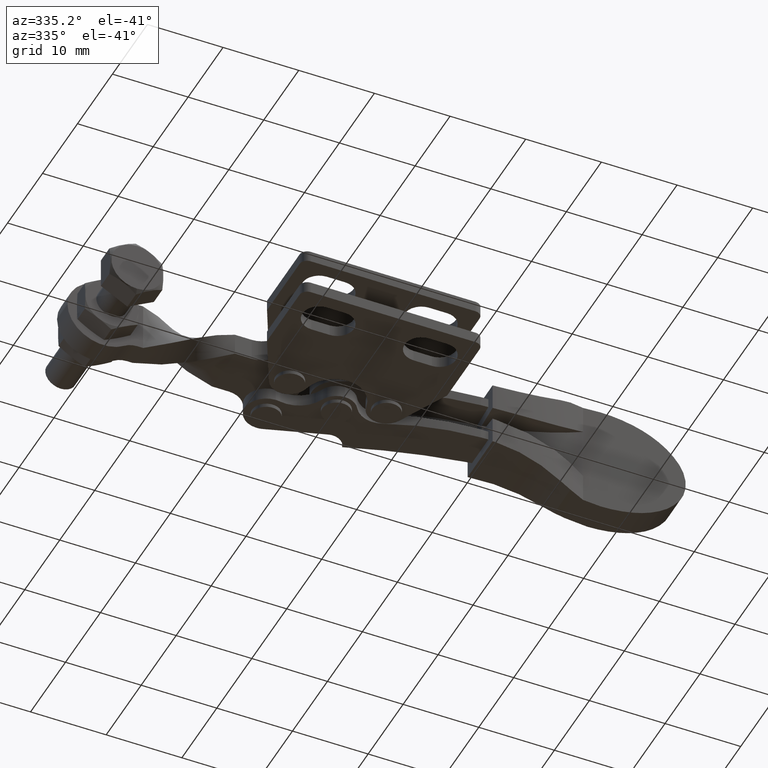
[diagram: clean part render]
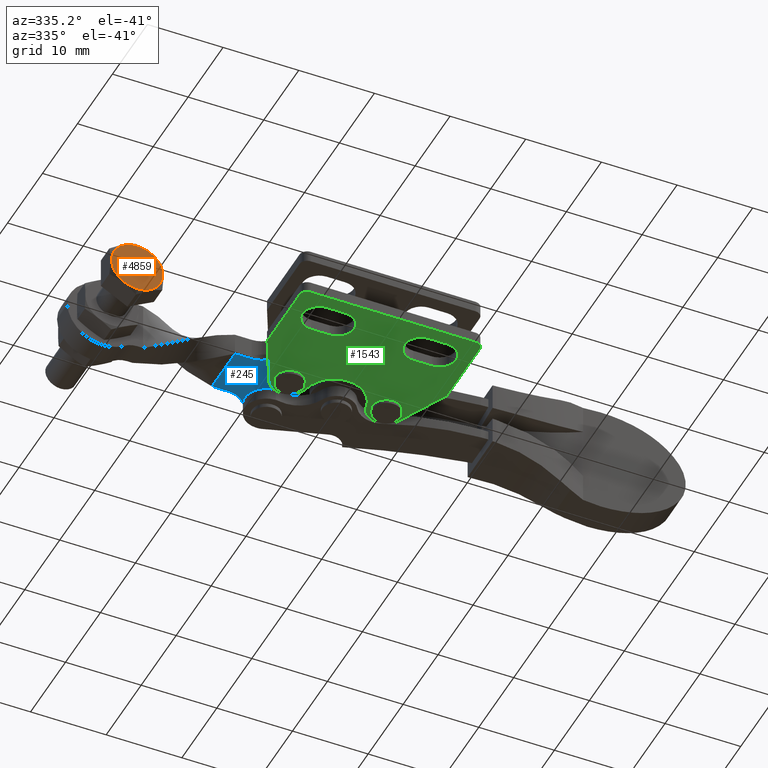
[diagram: same view with three faces highlighted in distinct colors, each labeled with its STEP entity id]
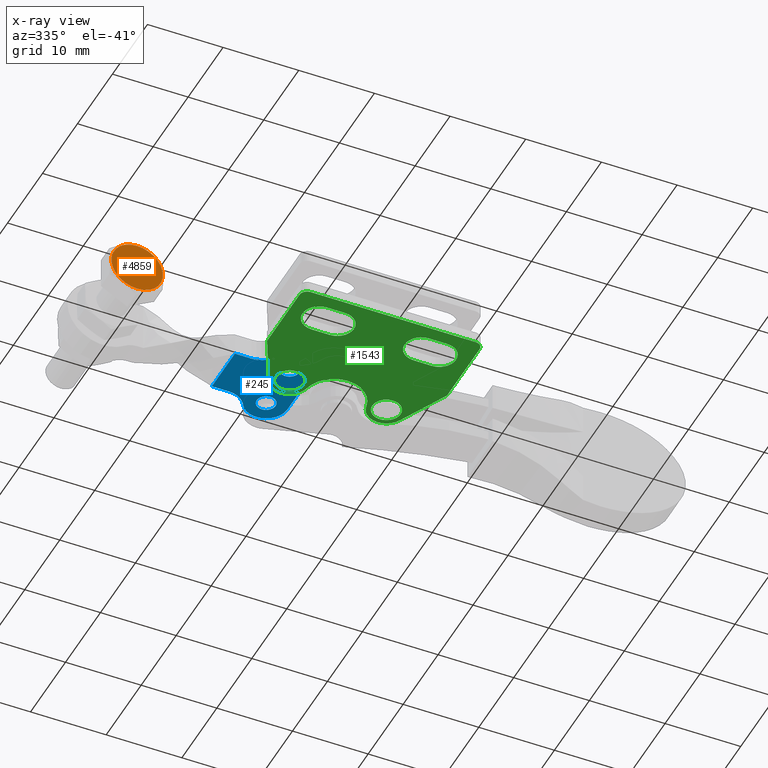
[diagram: x-ray of the same camera — body ghosted, the three highlighted faces saturated]
A machine part, auxiliary view with three faces highlighted in distinct colors.
The next image is the same camera in x-ray (body ghosted, the three faces saturated) — at least one of them is partly hidden behind the body in this view.
Their STEP definitions:

[orange] entity #4859 — the highlighted planar face has unit normal (0, 1, 0).
#105 = DIRECTION ( 'NONE',  ( 0.0000000000000000000, 0.0000000000000000000, -1.000000000000000000 ) ) ;
#788 = CIRCLE ( 'NONE', #1217, 3.399999999999999900 ) ;
#1043 = CARTESIAN_POINT ( 'NONE',  ( -18.25000000000123600, 0.01000000000086175000, -5.541451884327281100 ) ) ;
#1217 = AXIS2_PLACEMENT_3D ( 'NONE', #3407, #8541, #4140 ) ;
#1375 = DIRECTION ( 'NONE',  ( 0.0000000000000000000, -1.000000000000000000, 0.0000000000000000000 ) ) ;
#1430 = AXIS2_PLACEMENT_3D ( 'NONE', #6469, #1375, #105 ) ;
#1794 = DIRECTION ( 'NONE',  ( 0.0000000000000000000, -0.0000000000000000000, 1.000000000000000000 ) ) ;
#2398 = ORIENTED_EDGE ( 'NONE', *, *, #4022, .T. ) ;
#2518 = CARTESIAN_POINT ( 'NONE',  ( -18.25000000000123600, 0.01000000000086175000, 1.900000000000098700 ) ) ;
#3050 = FACE_OUTER_BOUND ( 'NONE', #8390, .T. ) ;
#3364 = VERTEX_POINT ( 'NONE', #2518 ) ;
#3407 = CARTESIAN_POINT ( 'NONE',  ( -18.25000000000123600, 0.01000000000086175000, -1.499999999999901200 ) ) ;
#3720 = CIRCLE ( 'NONE', #1430, 3.399999999999999900 ) ;
#4022 = EDGE_CURVE ( 'NONE', #3364, #8108, #3720, .T. ) ;
#4140 = DIRECTION ( 'NONE',  ( 0.0000000000000000000, 0.0000000000000000000, -1.000000000000000000 ) ) ;
#4859 = ADVANCED_FACE ( 'NONE', ( #3050 ), #7603, .F. ) ;
#4929 = AXIS2_PLACEMENT_3D ( 'NONE', #1043, #6156, #1794 ) ;
#5436 = ORIENTED_EDGE ( 'NONE', *, *, #8156, .T. ) ;
#6156 = DIRECTION ( 'NONE',  ( 0.0000000000000000000, 1.000000000000000000, 0.0000000000000000000 ) ) ;
#6469 = CARTESIAN_POINT ( 'NONE',  ( -18.25000000000123600, 0.01000000000086175000, -1.499999999999901200 ) ) ;
#7603 = PLANE ( 'NONE',  #4929 ) ;
#8108 = VERTEX_POINT ( 'NONE', #9255 ) ;
#8156 = EDGE_CURVE ( 'NONE', #8108, #3364, #788, .T. ) ;
#8390 = EDGE_LOOP ( 'NONE', ( #5436, #2398 ) ) ;
#8541 = DIRECTION ( 'NONE',  ( 0.0000000000000000000, -1.000000000000000000, 0.0000000000000000000 ) ) ;
#9255 = CARTESIAN_POINT ( 'NONE',  ( -18.25000000000123600, 0.01000000000086175000, -4.899999999999900900 ) ) ;

[blue] entity #245 — the highlighted planar face has unit normal (-0, 0, 1).
#27 = CARTESIAN_POINT ( 'NONE',  ( 6.749999999998759200, 14.50000000000084700, -2.999999999999999600 ) ) ;
#245 = ADVANCED_FACE ( 'NONE', ( #741, #8329, #6333 ), #1501, .F. ) ;
#372 = CIRCLE ( 'NONE', #4938, 2.999999999999954300 ) ;
#384 = VECTOR ( 'NONE', #8146, 1000.000000000000000 ) ;
#403 = CARTESIAN_POINT ( 'NONE',  ( 8.299999999998776800, 7.800000000001024800, -3.000000000000000400 ) ) ;
#482 = DIRECTION ( 'NONE',  ( 1.000000000000000000, 0.0000000000000000000, 0.0000000000000000000 ) ) ;
#514 = DIRECTION ( 'NONE',  ( 1.995021649832065000E-021, -0.0000000000000000000, -1.000000000000000000 ) ) ;
#539 = CARTESIAN_POINT ( 'NONE',  ( 5.499999999998759200, 14.50000000000084700, -2.999999999999999600 ) ) ;
#654 = DIRECTION ( 'NONE',  ( 1.995021649832065000E-021, -0.0000000000000000000, -1.000000000000000000 ) ) ;
#688 = DIRECTION ( 'NONE',  ( 1.000000000000000000, 0.0000000000000000000, 0.0000000000000000000 ) ) ;
#741 = FACE_OUTER_BOUND ( 'NONE', #6236, .T. ) ;
#765 = CARTESIAN_POINT ( 'NONE',  ( 5.499999999998759200, 14.50000000000084700, -2.999999999999999600 ) ) ;
#800 = CARTESIAN_POINT ( 'NONE',  ( 5.499999999998762800, 14.50000000000084700, -3.000000000000000900 ) ) ;
#810 = ORIENTED_EDGE ( 'NONE', *, *, #3572, .T. ) ;
#1055 = DIRECTION ( 'NONE',  ( 1.000000000000000000, 8.285109029773513300E-016, 1.995021649829753900E-021 ) ) ;
#1059 = CARTESIAN_POINT ( 'NONE',  ( 0.5062539111393183900, 17.45000000000088000, -3.000000000000000000 ) ) ;
#1186 = CARTESIAN_POINT ( 'NONE',  ( 3.089226026066583600, 15.92413793103536400, -3.000000000000000000 ) ) ;
#1321 = CIRCLE ( 'NONE', #8903, 2.800000000000019400 ) ;
#1362 = CARTESIAN_POINT ( 'NONE',  ( 4.249999999998762800, 7.800000000000904900, -2.999999999999999600 ) ) ;
#1367 = DIRECTION ( 'NONE',  ( 1.000000000000000000, -3.416624000150383700E-014, 9.986929045772952900E-015 ) ) ;
#1453 = VERTEX_POINT ( 'NONE', #1186 ) ;
#1499 = DIRECTION ( 'NONE',  ( 1.000000000000000000, 0.0000000000000000000, 0.0000000000000000000 ) ) ;
#1501 = PLANE ( 'NONE',  #4851 ) ;
#1662 = DIRECTION ( 'NONE',  ( -1.995021649832065000E-021, -0.0000000000000000000, 1.000000000000000000 ) ) ;
#1672 = EDGE_CURVE ( 'NONE', #5523, #1453, #1321, .T. ) ;
#1737 = ORIENTED_EDGE ( 'NONE', *, *, #8824, .F. ) ;
#1790 = EDGE_CURVE ( 'NONE', #2609, #5523, #3180, .T. ) ;
#1822 = DIRECTION ( 'NONE',  ( -6.505213034913126200E-016, 1.000000000000000000, 0.0000000000000000000 ) ) ;
#1857 = DIRECTION ( 'NONE',  ( 1.995021649832065000E-021, 0.0000000000000000000, -1.000000000000000000 ) ) ;
#1861 = EDGE_CURVE ( 'NONE', #4027, #2609, #2012, .T. ) ;
#2012 = CIRCLE ( 'NONE', #3115, 2.800000000000019400 ) ;
#2018 = CARTESIAN_POINT ( 'NONE',  ( 8.299999999998634700, 11.15000000000089000, -3.000000000000005300 ) ) ;
#2096 = CARTESIAN_POINT ( 'NONE',  ( 0.5062539111393809000, 7.850000000000769700, -3.000000000000000900 ) ) ;
#2256 = VERTEX_POINT ( 'NONE', #27 ) ;
#2265 = VERTEX_POINT ( 'NONE', #5142 ) ;
#2361 = EDGE_CURVE ( 'NONE', #4876, #4585, #5644, .T. ) ;
#2609 = VERTEX_POINT ( 'NONE', #403 ) ;
#2738 = CIRCLE ( 'NONE', #8814, 2.999999999999968000 ) ;
#2859 = CARTESIAN_POINT ( 'NONE',  ( -0.5968730444309220400, 7.850000000000797200, -2.999999999999999100 ) ) ;
#2875 = ORIENTED_EDGE ( 'NONE', *, *, #6908, .F. ) ;
#2882 = AXIS2_PLACEMENT_3D ( 'NONE', #4905, #7950, #688 ) ;
#3033 = CIRCLE ( 'NONE', #5545, 1.250000000000000200 ) ;
#3093 = VECTOR ( 'NONE', #1367, 1000.000000000000000 ) ;
#3115 = AXIS2_PLACEMENT_3D ( 'NONE', #7680, #1662, #7511 ) ;
#3180 = LINE ( 'NONE', #2018, #5329 ) ;
#3232 = CARTESIAN_POINT ( 'NONE',  ( 4.249999999998759200, 14.50000000000084700, -2.999999999999999600 ) ) ;
#3363 = AXIS2_PLACEMENT_3D ( 'NONE', #765, #5855, #1499 ) ;
#3412 = CARTESIAN_POINT ( 'NONE',  ( 0.5062539111392698700, 14.45000000000087700, -3.000000000000000400 ) ) ;
#3414 = EDGE_CURVE ( 'NONE', #3998, #2256, #3033, .T. ) ;
#3547 = LINE ( 'NONE', #2859, #3093 ) ;
#3572 = EDGE_CURVE ( 'NONE', #5767, #2265, #7695, .T. ) ;
#3657 = DIRECTION ( 'NONE',  ( -7.678352877981826000E-014, 1.000000000000000000, -1.149080830487037000E-014 ) ) ;
#3713 = DIRECTION ( 'NONE',  ( -1.995021649829753900E-021, 1.914701819192296700E-048, 1.000000000000000000 ) ) ;
#3962 = DIRECTION ( 'NONE',  ( -1.995021649832065000E-021, -0.0000000000000000000, 1.000000000000000000 ) ) ;
#3998 = VERTEX_POINT ( 'NONE', #3232 ) ;
#4008 = ORIENTED_EDGE ( 'NONE', *, *, #8366, .F. ) ;
#4027 = VERTEX_POINT ( 'NONE', #7255 ) ;
#4061 = CARTESIAN_POINT ( 'NONE',  ( 8.299999999998572500, 14.50000000000095400, -3.000000000000000400 ) ) ;
#4128 = DIRECTION ( 'NONE',  ( -1.000000000000000000, -2.149896335403862400E-015, -1.944710899607790800E-015 ) ) ;
#4243 = EDGE_CURVE ( 'NONE', #2256, #3998, #6907, .T. ) ;
#4585 = VERTEX_POINT ( 'NONE', #1362 ) ;
#4851 = AXIS2_PLACEMENT_3D ( 'NONE', #6128, #3713, #1055 ) ;
#4876 = VERTEX_POINT ( 'NONE', #7639 ) ;
#4905 = CARTESIAN_POINT ( 'NONE',  ( 5.499999999998762800, 7.800000000000904900, -2.999999999999999600 ) ) ;
#4938 = AXIS2_PLACEMENT_3D ( 'NONE', #1059, #6175, #1822 ) ;
#5028 = CARTESIAN_POINT ( 'NONE',  ( 5.499999999998762800, 7.800000000000904900, -2.999999999999999600 ) ) ;
#5099 = ORIENTED_EDGE ( 'NONE', *, *, #8066, .F. ) ;
#5142 = CARTESIAN_POINT ( 'NONE',  ( -1.700000000001311600, 14.45000000000088900, -2.999999999999983100 ) ) ;
#5329 = VECTOR ( 'NONE', #3657, 1000.000000000000000 ) ;
#5523 = VERTEX_POINT ( 'NONE', #4061 ) ;
#5545 = AXIS2_PLACEMENT_3D ( 'NONE', #539, #514, #482 ) ;
#5644 = CIRCLE ( 'NONE', #2882, 1.250000000000000200 ) ;
#5678 = VECTOR ( 'NONE', #4128, 1000.000000000000000 ) ;
#5711 = EDGE_CURVE ( 'NONE', #4585, #4876, #7934, .T. ) ;
#5754 = DIRECTION ( 'NONE',  ( 1.000000000000000000, 0.0000000000000000000, 0.0000000000000000000 ) ) ;
#5767 = VERTEX_POINT ( 'NONE', #8261 ) ;
#5855 = DIRECTION ( 'NONE',  ( 1.995021649832065000E-021, -0.0000000000000000000, -1.000000000000000000 ) ) ;
#6030 = VERTEX_POINT ( 'NONE', #3412 ) ;
#6128 = CARTESIAN_POINT ( 'NONE',  ( 0.5062539111393253900, 4.850000000000808800, -2.999999999999999600 ) ) ;
#6165 = ORIENTED_EDGE ( 'NONE', *, *, #2361, .F. ) ;
#6175 = DIRECTION ( 'NONE',  ( 1.995021649832065000E-021, 0.0000000000000000000, -1.000000000000000000 ) ) ;
#6216 = CARTESIAN_POINT ( 'NONE',  ( 0.5062539111393253900, 4.850000000000808800, -3.000000000000000400 ) ) ;
#6236 = EDGE_LOOP ( 'NONE', ( #4008, #810, #1737, #2875, #9311, #8726, #6775, #5099 ) ) ;
#6333 = FACE_BOUND ( 'NONE', #8928, .T. ) ;
#6775 = ORIENTED_EDGE ( 'NONE', *, *, #1861, .F. ) ;
#6907 = CIRCLE ( 'NONE', #3363, 1.250000000000000200 ) ;
#6908 = EDGE_CURVE ( 'NONE', #1453, #6030, #372, .T. ) ;
#6920 = EDGE_LOOP ( 'NONE', ( #6165, #9293 ) ) ;
#6946 = DIRECTION ( 'NONE',  ( -6.505213034913095600E-016, 1.000000000000000000, 0.0000000000000000000 ) ) ;
#7018 = ORIENTED_EDGE ( 'NONE', *, *, #4243, .F. ) ;
#7153 = DIRECTION ( 'NONE',  ( -6.195440985631410900E-016, 1.000000000000000000, 0.0000000000000000000 ) ) ;
#7255 = CARTESIAN_POINT ( 'NONE',  ( 3.089226026066607600, 6.375862068966371900, -3.000000000000000900 ) ) ;
#7408 = LINE ( 'NONE', #9280, #5678 ) ;
#7511 = DIRECTION ( 'NONE',  ( 3.097720492815705500E-016, 1.000000000000000000, 0.0000000000000000000 ) ) ;
#7639 = CARTESIAN_POINT ( 'NONE',  ( 6.749999999998762800, 7.800000000000904900, -2.999999999999999600 ) ) ;
#7654 = VERTEX_POINT ( 'NONE', #2096 ) ;
#7680 = CARTESIAN_POINT ( 'NONE',  ( 5.499999999998766300, 7.800000000000904900, -3.000000000000000900 ) ) ;
#7695 = LINE ( 'NONE', #8704, #384 ) ;
#7876 = ORIENTED_EDGE ( 'NONE', *, *, #3414, .F. ) ;
#7934 = CIRCLE ( 'NONE', #9380, 1.250000000000000200 ) ;
#7950 = DIRECTION ( 'NONE',  ( 1.995021649832065000E-021, -0.0000000000000000000, -1.000000000000000000 ) ) ;
#8066 = EDGE_CURVE ( 'NONE', #7654, #4027, #2738, .T. ) ;
#8146 = DIRECTION ( 'NONE',  ( -4.481942456846721100E-014, 1.000000000000000000, 1.082467449009527600E-014 ) ) ;
#8261 = CARTESIAN_POINT ( 'NONE',  ( -1.700000000001332400, 7.850000000000851400, -3.000000000000015500 ) ) ;
#8329 = FACE_BOUND ( 'NONE', #6920, .T. ) ;
#8366 = EDGE_CURVE ( 'NONE', #5767, #7654, #3547, .T. ) ;
#8704 = CARTESIAN_POINT ( 'NONE',  ( -1.700000000001256100, 11.15000000000086000, -2.999999999999995600 ) ) ;
#8726 = ORIENTED_EDGE ( 'NONE', *, *, #1790, .F. ) ;
#8814 = AXIS2_PLACEMENT_3D ( 'NONE', #6216, #1857, #6946 ) ;
#8824 = EDGE_CURVE ( 'NONE', #6030, #2265, #7408, .T. ) ;
#8903 = AXIS2_PLACEMENT_3D ( 'NONE', #800, #3962, #7153 ) ;
#8928 = EDGE_LOOP ( 'NONE', ( #7018, #7876 ) ) ;
#9280 = CARTESIAN_POINT ( 'NONE',  ( -0.5968730444309844300, 14.45000000000089300, -3.000000000000003600 ) ) ;
#9293 = ORIENTED_EDGE ( 'NONE', *, *, #5711, .F. ) ;
#9311 = ORIENTED_EDGE ( 'NONE', *, *, #1672, .F. ) ;
#9380 = AXIS2_PLACEMENT_3D ( 'NONE', #5028, #654, #5754 ) ;

[green] entity #1543 — the highlighted planar face has unit normal (0, 0, 1).
#3 = DIRECTION ( 'NONE',  ( 1.000000000000000000, 0.0000000000000000000, 0.0000000000000000000 ) ) ;
#21 = LINE ( 'NONE', #4573, #8892 ) ;
#79 = FACE_BOUND ( 'NONE', #129, .T. ) ;
#86 = AXIS2_PLACEMENT_3D ( 'NONE', #5265, #5599, #4816 ) ;
#95 = DIRECTION ( 'NONE',  ( 1.000000000000000000, 0.0000000000000000000, 0.0000000000000000000 ) ) ;
#112 = VERTEX_POINT ( 'NONE', #4150 ) ;
#129 = EDGE_LOOP ( 'NONE', ( #4120, #6189, #4794, #4086, #5095 ) ) ;
#162 = CARTESIAN_POINT ( 'NONE',  ( 11.89999999999980000, 16.89000000000005700, -3.199999999999851900 ) ) ;
#216 = LINE ( 'NONE', #6791, #3888 ) ;
#257 = DIRECTION ( 'NONE',  ( 0.0000000000000000000, 0.0000000000000000000, 1.000000000000000000 ) ) ;
#327 = CARTESIAN_POINT ( 'NONE',  ( 7.962000027045903900, 16.18846153846159900, -3.199999999999851900 ) ) ;
#390 = DIRECTION ( 'NONE',  ( 1.000000000000000000, 0.0000000000000000000, 0.0000000000000000000 ) ) ;
#426 = CARTESIAN_POINT ( 'NONE',  ( 1.000000000000000000, 0.0000000000000000000, -3.199999999999851900 ) ) ;
#629 = VERTEX_POINT ( 'NONE', #2244 ) ;
#635 = EDGE_CURVE ( 'NONE', #793, #6489, #1657, .T. ) ;
#662 = EDGE_CURVE ( 'NONE', #7148, #9131, #6142, .T. ) ;
#689 = DIRECTION ( 'NONE',  ( 0.0000000000000000000, 0.0000000000000000000, 1.000000000000000000 ) ) ;
#719 = AXIS2_PLACEMENT_3D ( 'NONE', #4642, #257, #5370 ) ;
#793 = VERTEX_POINT ( 'NONE', #8273 ) ;
#816 = DIRECTION ( 'NONE',  ( 1.000000000000000000, 0.0000000000000000000, -0.0000000000000000000 ) ) ;
#897 = DIRECTION ( 'NONE',  ( 1.000000000000000000, 0.0000000000000000000, 0.0000000000000000000 ) ) ;
#1075 = DIRECTION ( 'NONE',  ( 0.0000000000000000000, 0.0000000000000000000, 1.000000000000000000 ) ) ;
#1368 = CARTESIAN_POINT ( 'NONE',  ( 2.999999999999891600, 0.0000000000000000000, -3.199999999999851900 ) ) ;
#1401 = DIRECTION ( 'NONE',  ( 0.0000000000000000000, 0.0000000000000000000, 1.000000000000000000 ) ) ;
#1454 = CARTESIAN_POINT ( 'NONE',  ( 3.950000000000000200, 6.150000000000001200, -3.199999999999851900 ) ) ;
#1480 = ORIENTED_EDGE ( 'NONE', *, *, #1814, .T. ) ;
#1538 = ORIENTED_EDGE ( 'NONE', *, *, #8452, .F. ) ;
#1543 = ADVANCED_FACE ( 'NONE', ( #79, #2019, #7857, #7617, #5663 ), #2118, .F. ) ;
#1657 = CIRCLE ( 'NONE', #86, 1.875000000000000000 ) ;
#1771 = DIRECTION ( 'NONE',  ( 1.000000000000000000, 0.0000000000000000000, 0.0000000000000000000 ) ) ;
#1814 = EDGE_CURVE ( 'NONE', #7330, #7074, #5096, .T. ) ;
#1823 = VECTOR ( 'NONE', #4586, 1000.000000000000000 ) ;
#1935 = DIRECTION ( 'NONE',  ( -0.0000000000000000000, -0.0000000000000000000, -1.000000000000000000 ) ) ;
#1942 = ORIENTED_EDGE ( 'NONE', *, *, #6423, .F. ) ;
#1995 = ORIENTED_EDGE ( 'NONE', *, *, #6377, .F. ) ;
#2019 = FACE_BOUND ( 'NONE', #2306, .T. ) ;
#2031 = CARTESIAN_POINT ( 'NONE',  ( 3.262051122148043700, 16.86275654908130100, -3.199999999999851900 ) ) ;
#2047 = CIRCLE ( 'NONE', #4665, 1.000000000000000000 ) ;
#2118 = PLANE ( 'NONE',  #8400 ) ;
#2155 = EDGE_CURVE ( 'NONE', #629, #9114, #4755, .T. ) ;
#2244 = CARTESIAN_POINT ( 'NONE',  ( 22.05000000000000100, 3.950000000000000200, -3.199999999999851900 ) ) ;
#2305 = ORIENTED_EDGE ( 'NONE', *, *, #7975, .F. ) ;
#2306 = EDGE_LOOP ( 'NONE', ( #6276, #1480, #7039, #5490, #7748 ) ) ;
#2358 = ORIENTED_EDGE ( 'NONE', *, *, #7931, .F. ) ;
#2412 = VERTEX_POINT ( 'NONE', #3209 ) ;
#2415 = AXIS2_PLACEMENT_3D ( 'NONE', #2457, #7548, #3191 ) ;
#2457 = CARTESIAN_POINT ( 'NONE',  ( 5.500750043949922000, 15.75000000000009800, -3.199999999999851900 ) ) ;
#2652 = CARTESIAN_POINT ( 'NONE',  ( 17.44999999999999900, 1.749999999999999800, -3.199999999999851900 ) ) ;
#2687 = LINE ( 'NONE', #1368, #6325 ) ;
#2728 = CIRCLE ( 'NONE', #4725, 2.499999999999998700 ) ;
#2773 = CIRCLE ( 'NONE', #719, 2.200000000000000600 ) ;
#2783 = CARTESIAN_POINT ( 'NONE',  ( 1.000000000000000000, 1.000000000000000000, -3.199999999999851900 ) ) ;
#2788 = EDGE_CURVE ( 'NONE', #6489, #793, #6884, .T. ) ;
#2807 = ORIENTED_EDGE ( 'NONE', *, *, #4886, .T. ) ;
#2816 = EDGE_CURVE ( 'NONE', #9131, #8804, #3040, .T. ) ;
#2860 = DIRECTION ( 'NONE',  ( 1.000000000000000000, 0.0000000000000000000, 0.0000000000000000000 ) ) ;
#2957 = ORIENTED_EDGE ( 'NONE', *, *, #9433, .F. ) ;
#3017 = DIRECTION ( 'NONE',  ( 0.0000000000000000000, 0.0000000000000000000, 1.000000000000000000 ) ) ;
#3023 = CARTESIAN_POINT ( 'NONE',  ( 16.46520534518861100, 15.36024961145445300, -3.199999999999848700 ) ) ;
#3040 = CIRCLE ( 'NONE', #6881, 2.200000000000000600 ) ;
#3137 = CARTESIAN_POINT ( 'NONE',  ( 2.999999999999891600, 1.749999999999999800, -3.199999999999851900 ) ) ;
#3191 = DIRECTION ( 'NONE',  ( 1.000000000000000000, 0.0000000000000000000, 0.0000000000000000000 ) ) ;
#3209 = CARTESIAN_POINT ( 'NONE',  ( 6.349999999999999600, 1.749999999999999800, -3.199999999999851900 ) ) ;
#3215 = CARTESIAN_POINT ( 'NONE',  ( 20.13329456691074500, 16.13975038854574300, -3.199999999999848700 ) ) ;
#3235 = DIRECTION ( 'NONE',  ( -1.000000000000000000, -0.0000000000000000000, 0.0000000000000000000 ) ) ;
#3340 = CARTESIAN_POINT ( 'NONE',  ( 19.84999999999999800, 1.749999999999999800, -3.199999999999851900 ) ) ;
#3408 = CARTESIAN_POINT ( 'NONE',  ( 15.83799997295369400, 16.18846153846159900, -3.199999999999851900 ) ) ;
#3430 = VERTEX_POINT ( 'NONE', #426 ) ;
#3529 = DIRECTION ( 'NONE',  ( 1.000000000000000000, 0.0000000000000000000, 0.0000000000000000000 ) ) ;
#3543 = VERTEX_POINT ( 'NONE', #327 ) ;
#3689 = EDGE_LOOP ( 'NONE', ( #4255, #8479 ) ) ;
#3727 = CARTESIAN_POINT ( 'NONE',  ( 17.44999999999999900, 6.150000000000001200, -3.199999999999851900 ) ) ;
#3770 = DIRECTION ( 'NONE',  ( 0.0000000000000000000, 0.0000000000000000000, 1.000000000000000000 ) ) ;
#3876 = VERTEX_POINT ( 'NONE', #2031 ) ;
#3888 = VECTOR ( 'NONE', #6088, 1000.000000000000000 ) ;
#3926 = VECTOR ( 'NONE', #8077, 1000.000000000000100 ) ;
#3958 = CARTESIAN_POINT ( 'NONE',  ( 18.29924995604967800, 15.75000000000009800, -3.199999999999848700 ) ) ;
#4020 = DIRECTION ( 'NONE',  ( -0.4451026196324694400, 0.8954795687207571800, -0.0000000000000000000 ) ) ;
#4034 = EDGE_CURVE ( 'NONE', #8804, #2412, #9408, .T. ) ;
#4086 = ORIENTED_EDGE ( 'NONE', *, *, #4867, .T. ) ;
#4087 = EDGE_CURVE ( 'NONE', #9114, #7330, #8445, .T. ) ;
#4120 = ORIENTED_EDGE ( 'NONE', *, *, #662, .T. ) ;
#4150 = CARTESIAN_POINT ( 'NONE',  ( 8.550000000000000700, 3.950000000000000200, -3.199999999999851900 ) ) ;
#4228 = VECTOR ( 'NONE', #3235, 1000.000000000000000 ) ;
#4255 = ORIENTED_EDGE ( 'NONE', *, *, #2788, .F. ) ;
#4385 = CARTESIAN_POINT ( 'NONE',  ( 23.79999999999959900, 1.000000000000000000, -3.199999999999851900 ) ) ;
#4392 = LINE ( 'NONE', #6568, #3926 ) ;
#4402 = DIRECTION ( 'NONE',  ( 0.0000000000000000000, 0.0000000000000000000, 1.000000000000000000 ) ) ;
#4421 = AXIS2_PLACEMENT_3D ( 'NONE', #3958, #9135, #4686 ) ;
#4434 = VECTOR ( 'NONE', #5674, 1000.000000000000000 ) ;
#4458 = EDGE_LOOP ( 'NONE', ( #5078, #4519, #1942, #4989, #2358, #1995, #2957, #5811, #2305, #2807 ) ) ;
#4464 = AXIS2_PLACEMENT_3D ( 'NONE', #5465, #1075, #6184 ) ;
#4481 = DIRECTION ( 'NONE',  ( -0.0000000000000000000, -0.0000000000000000000, -1.000000000000000000 ) ) ;
#4489 = AXIS2_PLACEMENT_3D ( 'NONE', #8904, #4481, #95 ) ;
#4519 = ORIENTED_EDGE ( 'NONE', *, *, #8263, .T. ) ;
#4523 = VERTEX_POINT ( 'NONE', #3340 ) ;
#4573 = CARTESIAN_POINT ( 'NONE',  ( 0.0000000000000000000, 3.000000000000113700, -3.199999999999851900 ) ) ;
#4586 = DIRECTION ( 'NONE',  ( 1.000000000000000000, 0.0000000000000000000, -0.0000000000000000000 ) ) ;
#4600 = CARTESIAN_POINT ( 'NONE',  ( 17.44999999999999900, 3.950000000000000200, -3.199999999999851900 ) ) ;
#4625 = DIRECTION ( 'NONE',  ( 0.0000000000000000000, 0.0000000000000000000, 1.000000000000000000 ) ) ;
#4642 = CARTESIAN_POINT ( 'NONE',  ( 6.349999999999999600, 3.950000000000000200, -3.199999999999851900 ) ) ;
#4662 = DIRECTION ( 'NONE',  ( 1.000000000000000000, 0.0000000000000000000, 0.0000000000000000000 ) ) ;
#4665 = AXIS2_PLACEMENT_3D ( 'NONE', #2783, #7902, #3529 ) ;
#4686 = DIRECTION ( 'NONE',  ( 1.000000000000000000, 0.0000000000000000000, 0.0000000000000000000 ) ) ;
#4725 = AXIS2_PLACEMENT_3D ( 'NONE', #8821, #4402, #3 ) ;
#4755 = CIRCLE ( 'NONE', #8011, 2.200000000000000600 ) ;
#4765 = DIRECTION ( 'NONE',  ( -0.0000000000000000000, -0.0000000000000000000, -1.000000000000000000 ) ) ;
#4794 = ORIENTED_EDGE ( 'NONE', *, *, #4034, .T. ) ;
#4809 = CARTESIAN_POINT ( 'NONE',  ( 23.79999999999959900, 10.30000000000008600, -3.199999999999851900 ) ) ;
#4816 = DIRECTION ( 'NONE',  ( 1.000000000000000000, 1.850371707708594400E-015, 0.0000000000000000000 ) ) ;
#4867 = EDGE_CURVE ( 'NONE', #2412, #112, #7954, .T. ) ;
#4886 = EDGE_CURVE ( 'NONE', #7280, #7785, #7717, .T. ) ;
#4933 = AXIS2_PLACEMENT_3D ( 'NONE', #7229, #1935, #7141 ) ;
#4989 = ORIENTED_EDGE ( 'NONE', *, *, #6264, .F. ) ;
#5013 = VERTEX_POINT ( 'NONE', #3408 ) ;
#5078 = ORIENTED_EDGE ( 'NONE', *, *, #5102, .F. ) ;
#5095 = ORIENTED_EDGE ( 'NONE', *, *, #6475, .T. ) ;
#5096 = CIRCLE ( 'NONE', #8209, 2.200000000000000600 ) ;
#5102 = EDGE_CURVE ( 'NONE', #3430, #7785, #2687, .T. ) ;
#5150 = CIRCLE ( 'NONE', #4421, 1.874999999999998200 ) ;
#5240 = VERTEX_POINT ( 'NONE', #3023 ) ;
#5265 = CARTESIAN_POINT ( 'NONE',  ( 5.500750043949922800, 15.75000000000009800, -3.199999999999848700 ) ) ;
#5276 = DIRECTION ( 'NONE',  ( -0.0000000000000000000, -0.0000000000000000000, -1.000000000000000000 ) ) ;
#5301 = ORIENTED_EDGE ( 'NONE', *, *, #7371, .F. ) ;
#5317 = CARTESIAN_POINT ( 'NONE',  ( 19.84999999999999800, 6.150000000000001200, -3.199999999999851900 ) ) ;
#5370 = DIRECTION ( 'NONE',  ( 1.000000000000000000, 0.0000000000000000000, 0.0000000000000000000 ) ) ;
#5465 = CARTESIAN_POINT ( 'NONE',  ( 6.349999999999999600, 3.950000000000000200, -3.199999999999851900 ) ) ;
#5490 = ORIENTED_EDGE ( 'NONE', *, *, #8465, .T. ) ;
#5568 = CIRCLE ( 'NONE', #4489, 1.874999999999998200 ) ;
#5599 = DIRECTION ( 'NONE',  ( -0.0000000000000000000, -0.0000000000000000000, -1.000000000000000000 ) ) ;
#5663 = FACE_OUTER_BOUND ( 'NONE', #4458, .T. ) ;
#5674 = DIRECTION ( 'NONE',  ( -1.000000000000000000, -0.0000000000000000000, 0.0000000000000000000 ) ) ;
#5737 = CARTESIAN_POINT ( 'NONE',  ( 2.999999999999891600, 1.749999999999999800, -3.199999999999851900 ) ) ;
#5811 = ORIENTED_EDGE ( 'NONE', *, *, #5930, .F. ) ;
#5890 = AXIS2_PLACEMENT_3D ( 'NONE', #9224, #4765, #390 ) ;
#5930 = EDGE_CURVE ( 'NONE', #5993, #8474, #8415, .T. ) ;
#5993 = VERTEX_POINT ( 'NONE', #4809 ) ;
#6058 = DIRECTION ( 'NONE',  ( 1.000000000000000000, 0.0000000000000000000, -0.0000000000000000000 ) ) ;
#6059 = CARTESIAN_POINT ( 'NONE',  ( 7.373472918111313700, 15.65762015050517800, -3.199999999999848700 ) ) ;
#6088 = DIRECTION ( 'NONE',  ( 0.0000000000000000000, 1.000000000000000000, 0.0000000000000000000 ) ) ;
#6142 = LINE ( 'NONE', #9099, #4228 ) ;
#6149 = LINE ( 'NONE', #3137, #1823 ) ;
#6184 = DIRECTION ( 'NONE',  ( 1.000000000000000000, 0.0000000000000000000, 0.0000000000000000000 ) ) ;
#6189 = ORIENTED_EDGE ( 'NONE', *, *, #2816, .T. ) ;
#6264 = EDGE_CURVE ( 'NONE', #3876, #9420, #4392, .T. ) ;
#6276 = ORIENTED_EDGE ( 'NONE', *, *, #4087, .T. ) ;
#6325 = VECTOR ( 'NONE', #2860, 1000.000000000000000 ) ;
#6377 = EDGE_CURVE ( 'NONE', #5013, #3543, #7094, .T. ) ;
#6408 = AXIS2_PLACEMENT_3D ( 'NONE', #8175, #3770, #8941 ) ;
#6409 = VECTOR ( 'NONE', #4020, 1000.000000000000100 ) ;
#6423 = EDGE_CURVE ( 'NONE', #9420, #6934, #21, .T. ) ;
#6442 = CARTESIAN_POINT ( 'NONE',  ( 3.950000000000000200, 3.950000000000000200, -3.199999999999851900 ) ) ;
#6475 = EDGE_CURVE ( 'NONE', #112, #7148, #2773, .T. ) ;
#6489 = VERTEX_POINT ( 'NONE', #6059 ) ;
#6568 = CARTESIAN_POINT ( 'NONE',  ( 3.262051122148040200, 16.86275654908130100, -3.199999999999851900 ) ) ;
#6610 = CARTESIAN_POINT ( 'NONE',  ( 22.79999999999959900, 0.0000000000000000000, -3.199999999999851900 ) ) ;
#6791 = CARTESIAN_POINT ( 'NONE',  ( 23.79999999999959900, 3.000000000000113700, -3.199999999999851900 ) ) ;
#6850 = DIRECTION ( 'NONE',  ( 1.000000000000000000, 0.0000000000000000000, 0.0000000000000000000 ) ) ;
#6881 = AXIS2_PLACEMENT_3D ( 'NONE', #6442, #3017, #4662 ) ;
#6884 = CIRCLE ( 'NONE', #4933, 1.875000000000000000 ) ;
#6934 = VERTEX_POINT ( 'NONE', #9172 ) ;
#7039 = ORIENTED_EDGE ( 'NONE', *, *, #9110, .T. ) ;
#7074 = VERTEX_POINT ( 'NONE', #2652 ) ;
#7092 = CARTESIAN_POINT ( 'NONE',  ( 6.349999999999999600, 6.150000000000001200, -3.199999999999851900 ) ) ;
#7094 = CIRCLE ( 'NONE', #9330, 4.000000000000329500 ) ;
#7141 = DIRECTION ( 'NONE',  ( 1.000000000000000000, 0.0000000000000000000, 0.0000000000000000000 ) ) ;
#7148 = VERTEX_POINT ( 'NONE', #7092 ) ;
#7229 = CARTESIAN_POINT ( 'NONE',  ( 5.500750043949922800, 15.75000000000009800, -3.199999999999848700 ) ) ;
#7280 = VERTEX_POINT ( 'NONE', #4385 ) ;
#7302 = CIRCLE ( 'NONE', #6408, 2.200000000000000600 ) ;
#7330 = VERTEX_POINT ( 'NONE', #3727 ) ;
#7371 = EDGE_CURVE ( 'NONE', #8624, #5240, #5150, .T. ) ;
#7374 = VECTOR ( 'NONE', #6058, 1000.000000000000000 ) ;
#7409 = CARTESIAN_POINT ( 'NONE',  ( 20.53794887785156600, 16.86275654908127600, -3.199999999999851900 ) ) ;
#7548 = DIRECTION ( 'NONE',  ( 0.0000000000000000000, 0.0000000000000000000, 1.000000000000000000 ) ) ;
#7617 = FACE_BOUND ( 'NONE', #9178, .T. ) ;
#7717 = CIRCLE ( 'NONE', #5890, 1.000000000000000900 ) ;
#7748 = ORIENTED_EDGE ( 'NONE', *, *, #2155, .T. ) ;
#7785 = VERTEX_POINT ( 'NONE', #6610 ) ;
#7836 = CARTESIAN_POINT ( 'NONE',  ( 19.84999999999999800, 3.950000000000000200, -3.199999999999851900 ) ) ;
#7857 = FACE_BOUND ( 'NONE', #3689, .T. ) ;
#7867 = CARTESIAN_POINT ( 'NONE',  ( 2.999999999999891600, 6.150000000000001200, -3.199999999999851900 ) ) ;
#7902 = DIRECTION ( 'NONE',  ( -0.0000000000000000000, -0.0000000000000000000, -1.000000000000000000 ) ) ;
#7931 = EDGE_CURVE ( 'NONE', #3543, #3876, #8012, .T. ) ;
#7954 = CIRCLE ( 'NONE', #4464, 2.200000000000000600 ) ;
#7975 = EDGE_CURVE ( 'NONE', #7280, #5993, #216, .T. ) ;
#8011 = AXIS2_PLACEMENT_3D ( 'NONE', #7836, #4625, #1771 ) ;
#8012 = CIRCLE ( 'NONE', #2415, 2.500000000000002200 ) ;
#8077 = DIRECTION ( 'NONE',  ( -0.4451026196324809900, -0.8954795687207514100, 0.0000000000000000000 ) ) ;
#8175 = CARTESIAN_POINT ( 'NONE',  ( 19.84999999999999800, 3.950000000000000200, -3.199999999999851900 ) ) ;
#8209 = AXIS2_PLACEMENT_3D ( 'NONE', #4600, #1401, #6850 ) ;
#8263 = EDGE_CURVE ( 'NONE', #3430, #6934, #2047, .T. ) ;
#8273 = CARTESIAN_POINT ( 'NONE',  ( 3.628027169788533300, 15.84237984949501600, -3.199999999999848700 ) ) ;
#8400 = AXIS2_PLACEMENT_3D ( 'NONE', #8476, #689, #816 ) ;
#8415 = LINE ( 'NONE', #8418, #6409 ) ;
#8418 = CARTESIAN_POINT ( 'NONE',  ( 20.53794887785156600, 16.86275654908127600, -3.199999999999851900 ) ) ;
#8445 = LINE ( 'NONE', #7867, #4434 ) ;
#8452 = EDGE_CURVE ( 'NONE', #5240, #8624, #5568, .T. ) ;
#8465 = EDGE_CURVE ( 'NONE', #4523, #629, #7302, .T. ) ;
#8474 = VERTEX_POINT ( 'NONE', #7409 ) ;
#8476 = CARTESIAN_POINT ( 'NONE',  ( 2.999999999999891600, 3.000000000000113700, -3.199999999999851900 ) ) ;
#8479 = ORIENTED_EDGE ( 'NONE', *, *, #635, .F. ) ;
#8532 = CARTESIAN_POINT ( 'NONE',  ( 3.950000000000000200, 1.749999999999999800, -3.199999999999851900 ) ) ;
#8624 = VERTEX_POINT ( 'NONE', #3215 ) ;
#8714 = CARTESIAN_POINT ( 'NONE',  ( 0.0000000000000000000, 10.30000000000031000, -3.199999999999851900 ) ) ;
#8804 = VERTEX_POINT ( 'NONE', #8532 ) ;
#8821 = CARTESIAN_POINT ( 'NONE',  ( 18.29924995604967800, 15.75000000000009800, -3.199999999999851900 ) ) ;
#8892 = VECTOR ( 'NONE', #9012, 1000.000000000000000 ) ;
#8904 = CARTESIAN_POINT ( 'NONE',  ( 18.29924995604967800, 15.75000000000009800, -3.199999999999848700 ) ) ;
#8941 = DIRECTION ( 'NONE',  ( 1.000000000000000000, 0.0000000000000000000, 0.0000000000000000000 ) ) ;
#9012 = DIRECTION ( 'NONE',  ( -0.0000000000000000000, -1.000000000000000000, -0.0000000000000000000 ) ) ;
#9099 = CARTESIAN_POINT ( 'NONE',  ( 2.999999999999891600, 6.150000000000001200, -3.199999999999851900 ) ) ;
#9110 = EDGE_CURVE ( 'NONE', #7074, #4523, #6149, .T. ) ;
#9114 = VERTEX_POINT ( 'NONE', #5317 ) ;
#9131 = VERTEX_POINT ( 'NONE', #1454 ) ;
#9135 = DIRECTION ( 'NONE',  ( -0.0000000000000000000, -0.0000000000000000000, -1.000000000000000000 ) ) ;
#9172 = CARTESIAN_POINT ( 'NONE',  ( 0.0000000000000000000, 1.000000000000000000, -3.199999999999851900 ) ) ;
#9178 = EDGE_LOOP ( 'NONE', ( #5301, #1538 ) ) ;
#9224 = CARTESIAN_POINT ( 'NONE',  ( 22.79999999999959900, 1.000000000000000000, -3.199999999999851900 ) ) ;
#9330 = AXIS2_PLACEMENT_3D ( 'NONE', #162, #5276, #897 ) ;
#9408 = LINE ( 'NONE', #5737, #7374 ) ;
#9420 = VERTEX_POINT ( 'NONE', #8714 ) ;
#9433 = EDGE_CURVE ( 'NONE', #8474, #5013, #2728, .T. ) ;